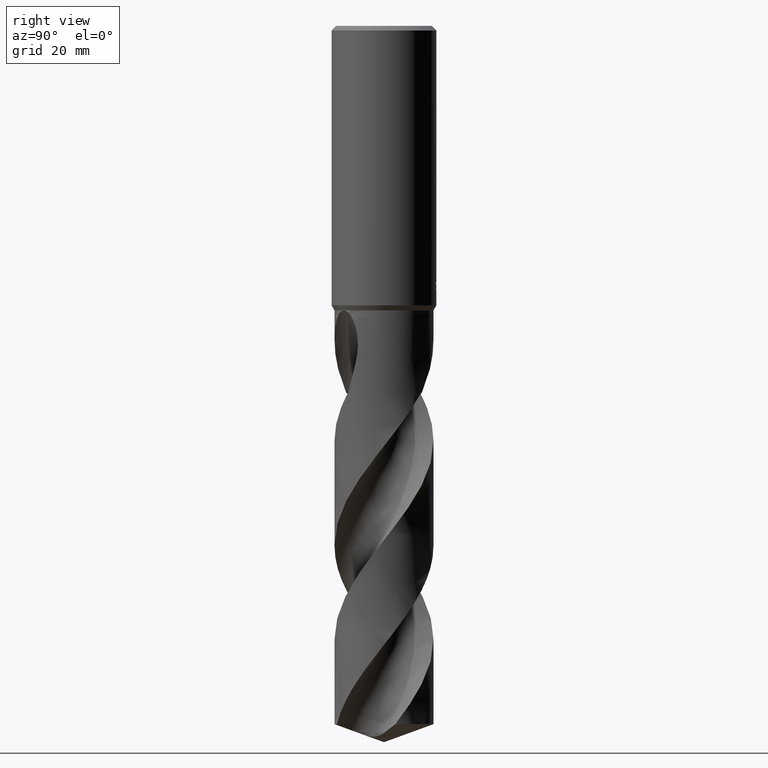
[diagram: clean part render]
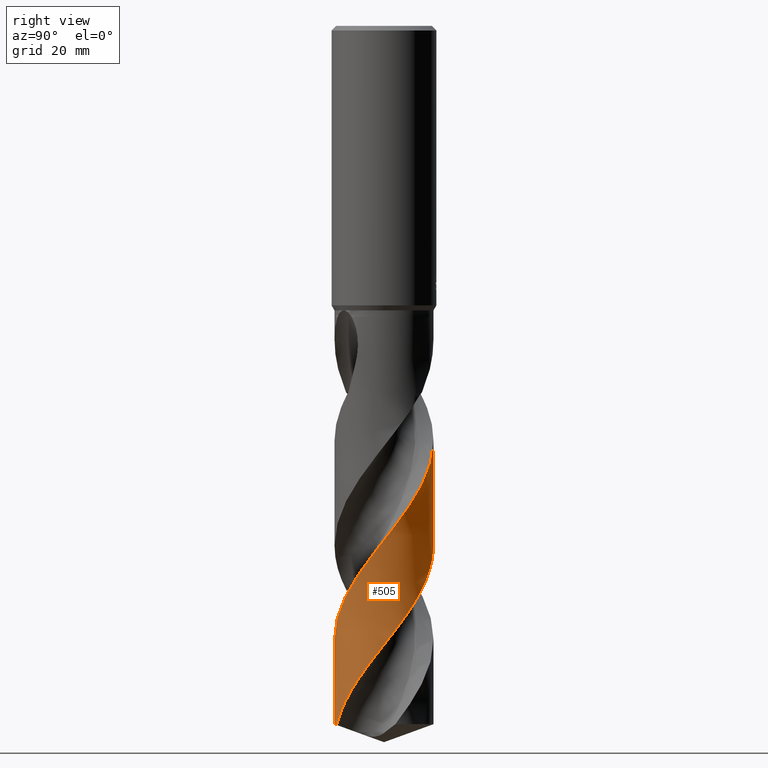
[diagram: same view with one face highlighted and labeled with its STEP entity id]
A machine part, right view. The second image highlights one B-rep face of the part: STEP entity #505.
In plain terms, the highlighted conical surface has half-angle 0 deg.
Its self-contained STEP definition (entity closure, byte-faithful):
#371=EDGE_CURVE('',#585,#535,#889,.T.);
#379=EDGE_CURVE('',#519,#491,#898,.T.);
#385=VERTEX_POINT('',#904);
#491=VERTEX_POINT('',#1021);
#505=ADVANCED_FACE('',(#1036),#1037,.T.);
#519=VERTEX_POINT('',#1053);
#535=VERTEX_POINT('',#1071);
#563=EDGE_CURVE('',#385,#535,#1102,.T.);
#565=EDGE_CURVE('',#585,#519,#1104,.T.);
#585=VERTEX_POINT('',#1124);
#707=EDGE_CURVE('',#385,#491,#1257,.T.);
#889=B_SPLINE_CURVE_WITH_KNOTS('',3,(#2892,#2893,#2894,#2895,#2896,#2897,#2898,#2899,#2900,#2901,#2902,#2903,#2904,#2905,#2906,#2907,#2908,#2909,#2910,#2911,#2912,#2913,#2914,#2915,#2916,#2917,#2918,#2919,#2920,#2921,#2922,#2923,#2924,#2925,#2926,#2927,#2928,#2929,#2930,#2931,#2932,#2933,#2934,#2935,#2936,#2937,#2938,#2939,#2940,#2941,#2942,#2943,#2944,#2945,#2946,#2947,#2948,#2949,#2950,#2951,#2952,#2953,#2954,#2955,#2956,#2957,#2958,#2959,#2960,#2961,#2962,#2963,#2964,#2965,#2966,#2967,#2968,#2969),.UNSPECIFIED.,.F.,.F.,(4,2,2,2,2,2,2,2,2,2,2,2,2,2,2,2,2,2,2,2,2,2,2,2,2,2,2,2,2,2,2,2,2,2,2,2,2,2,4),(0.0,0.522563173765693,1.06852787144432,3.34920803569918,4.92623591202756,6.26376894527645,9.73321756467634,11.0126163139356,14.2925667231069,15.854647884131,18.8948826092623,21.6782707077687,23.2905712357289,26.597154616735,29.2462148435049,30.2440652652966,33.3355472262883,36.1004614177827,38.9164952089854,39.4585055175222,42.6761939699768,45.7998130510591,48.5512001440996,48.8223862354826,53.3090894083769,53.8513011431229,58.2104804619845,58.3876437263313,62.6964514163737,63.8166452772653,65.8150686431684,67.6747637446207,68.7418822960407,69.6574210277493,70.4989231501578,70.8960297154981,71.4592013883667,72.7020427435539,73.5316494986147),.UNSPECIFIED.);
#898=LINE('',#2981,#2982);
#904=CARTESIAN_POINT('',(-2.53911718954206E-014,8.4999303640152,-71.226345266382));
#1021=CARTESIAN_POINT('',(1.47295884342451E-014,-8.49997919241052,-105.3604468587));
#1036=FACE_OUTER_BOUND('',#4318,.T.);
#1037=CONICAL_SURFACE('',#4319,8.49995,1.43048719815093E-006);
#1053=CARTESIAN_POINT('',(1.03746998619684E-015,-8.5,-119.906253008737));
#1071=CARTESIAN_POINT('',(1.45768554153083E-014,8.49995609925248,-89.216885372482));
#1102=LINE('',#4409,#4410);
#1104=CIRCLE('',#4413,8.5);
#1124=CARTESIAN_POINT('',(2.64912910063122,-8.07664008162979,-119.906253008737));
#1257=B_SPLINE_CURVE_WITH_KNOTS('',3,(#5201,#5202,#5203,#5204,#5205,#5206,#5207,#5208,#5209,#5210,#5211,#5212,#5213,#5214,#5215,#5216,#5217,#5218,#5219,#5220,#5221,#5222,#5223,#5224,#5225,#5226,#5227,#5228,#5229,#5230,#5231,#5232,#5233,#5234,#5235,#5236,#5237,#5238,#5239,#5240,#5241,#5242,#5243,#5244,#5245,#5246,#5247,#5248,#5249,#5250,#5251,#5252,#5253,#5254,#5255,#5256,#5257,#5258,#5259,#5260,#5261,#5262,#5263,#5264,#5265,#5266,#5267,#5268,#5269,#5270,#5271,#5272,#5273,#5274,#5275,#5276,#5277,#5278,#5279,#5280,#5281,#5282,#5283,#5284,#5285,#5286,#5287,#5288,#5289,#5290,#5291,#5292,#5293,#5294),.UNSPECIFIED.,.F.,.F.,(4,2,2,2,2,2,2,2,2,2,2,2,2,2,2,2,2,2,2,2,2,2,2,2,2,2,2,2,2,2,2,2,2,2,2,2,2,2,2,2,2,2,2,2,2,2,4),(0.0,0.253812338952546,0.303065578360708,1.36567609327622,1.71326172082814,1.92978585357073,2.12916142180026,2.82857112846694,3.25207999522695,3.4194376655401,3.53627290174181,3.63733756199075,4.26628031347629,5.2413929826984,6.45492809797782,8.06006967037196,10.1774083643199,13.0142745039423,15.1197337604657,17.2291055768132,19.3406794450398,21.4411121107762,22.5002519598631,24.5896516441418,26.699895634037,28.8068514497284,30.9105827809901,31.9688849657346,33.0134482178288,37.1711254169557,37.2323007257813,40.7622776718615,42.8632847307241,44.9679491531301,46.0251444994689,47.0655908240784,49.1630782395083,50.2217386611367,52.3147155685225,54.4216976726653,56.4229663295075,59.9033612358468,61.2157169828315,63.526609897052,67.0035445281928,68.7426594625338,70.4838149129698),.UNSPECIFIED.);
#2892=CARTESIAN_POINT('',(2.64912910063121,-8.0766400816298,-119.906253008737));
#2893=CARTESIAN_POINT('',(2.75098393759203,-8.04323159996719,-119.768954687779));
#2894=CARTESIAN_POINT('',(2.85219617614923,-8.00789985668937,-119.631692707535));
#2895=CARTESIAN_POINT('',(3.05772794157049,-7.93176072954062,-119.350942803885));
#2896=CARTESIAN_POINT('',(3.16198306629713,-7.89077964541316,-119.207375955885));
#2897=CARTESIAN_POINT('',(3.69763170476251,-7.66789489262512,-118.464714375239));
#2898=CARTESIAN_POINT('',(4.11479116041626,-7.45243636111605,-117.868787992535));
#2899=CARTESIAN_POINT('',(4.78767827295297,-7.03089083955277,-116.857214006794));
#2900=CARTESIAN_POINT('',(5.05228281222242,-6.84318206998036,-116.444428298932));
#2901=CARTESIAN_POINT('',(5.51970598669576,-6.4697851248192,-115.678889054505));
#2902=CARTESIAN_POINT('',(5.72543562735683,-6.28843590937243,-115.326338353962));
#2903=CARTESIAN_POINT('',(6.43218045082562,-5.60201361475981,-114.063925146229));
#2904=CARTESIAN_POINT('',(6.8781594144636,-5.04449951513085,-113.163503107259));
#2905=CARTESIAN_POINT('',(7.38658965708235,-4.21389804947806,-111.917548190763));
#2906=CARTESIAN_POINT('',(7.51297846529282,-3.98417708818616,-111.580889678707));
#2907=CARTESIAN_POINT('',(7.92498888747934,-3.14578136039116,-110.384777385938));
#2908=CARTESIAN_POINT('',(8.14888139300285,-2.50952355768237,-109.533308339802));
#2909=CARTESIAN_POINT('',(8.36532517773831,-1.54065700596246,-108.264220801238));
#2910=CARTESIAN_POINT('',(8.41734508244911,-1.22483393199911,-107.853307497329));
#2911=CARTESIAN_POINT('',(8.51784822300015,-0.288281446076393,-106.647171829965));
#2912=CARTESIAN_POINT('',(8.51614861730795,0.336093254698121,-105.857670777251));
#2913=CARTESIAN_POINT('',(8.38205885374967,1.52183932315258,-104.333247502689));
#2914=CARTESIAN_POINT('',(8.26113900637088,2.08060004996286,-103.601702385069));
#2915=CARTESIAN_POINT('',(7.98295873306897,2.93789625700232,-102.451275437434));
#2916=CARTESIAN_POINT('',(7.86266566880863,3.24612959231397,-102.030387632079));
#2917=CARTESIAN_POINT('',(7.44181096386992,4.16277689570681,-100.743158849098));
#2918=CARTESIAN_POINT('',(7.08636703099604,4.74264351336634,-99.8746091991749));
#2919=CARTESIAN_POINT('',(6.32854882210871,5.70035356788034,-98.3161379449366));
#2920=CARTESIAN_POINT('',(5.95186928786726,6.0924646289315,-97.6272565589455));
#2921=CARTESIAN_POINT('',(5.38638556263966,6.57859542487709,-96.671401751321));
#2922=CARTESIAN_POINT('',(5.22694933434147,6.70598541612625,-96.4093267663912));
#2923=CARTESIAN_POINT('',(4.55382452714012,7.20509598853579,-95.336457226253));
#2924=CARTESIAN_POINT('',(4.00420913159156,7.52447685403036,-94.5330004675083));
#2925=CARTESIAN_POINT('',(2.90478385745131,8.00831940255177,-92.9980825475109));
#2926=CARTESIAN_POINT('',(2.36410668880177,8.18428762526545,-92.2705388292622));
#2927=CARTESIAN_POINT('',(1.2445571093004,8.4282045541957,-90.8081457592181));
#2928=CARTESIAN_POINT('',(0.669408795424937,8.49313633870847,-90.0754871151347));
#2929=CARTESIAN_POINT('',(-0.0178515618868574,8.50066121093801,-89.1940387035066));
#2930=CARTESIAN_POINT('',(-0.128700775799963,8.4997068816113,-89.0516388482566));
#2931=CARTESIAN_POINT('',(-0.898676471842592,8.47798313325479,-88.0640430956754));
#2932=CARTESIAN_POINT('',(-1.55384072915769,8.38279568796939,-87.2274458414239));
#2933=CARTESIAN_POINT('',(-2.81181112344267,8.04700033415922,-85.5648636900374));
#2934=CARTESIAN_POINT('',(-3.41065227365796,7.81206401554192,-84.7428333255196));
#2935=CARTESIAN_POINT('',(-4.47722902075621,7.2472746311567,-83.2028829207403));
#2936=CARTESIAN_POINT('',(-4.94826359237976,6.93404926416158,-82.4865091750369));
#2937=CARTESIAN_POINT('',(-5.42707272093589,6.5420971035327,-81.6926579946691));
#2938=CARTESIAN_POINT('',(-5.46962941551944,6.50655838804929,-81.621445934763));
#2939=CARTESIAN_POINT('',(-6.21073343886888,5.87525687992692,-80.372195741408));
#2940=CARTESIAN_POINT('',(-6.80814242699897,5.17106905421937,-79.2166099893045));
#2941=CARTESIAN_POINT('',(-7.33866308247959,4.29013936672446,-77.8972244836123));
#2942=CARTESIAN_POINT('',(-7.39397030060091,4.19410487545515,-77.7548330744827));
#2943=CARTESIAN_POINT('',(-7.87790944222036,3.31435238520003,-76.4673408092359));
#2944=CARTESIAN_POINT('',(-8.1821057069836,2.46950134732456,-75.3433355852327));
#2945=CARTESIAN_POINT('',(-8.35613893355806,1.55728766377542,-74.1525478446468));
#2946=CARTESIAN_POINT('',(-8.3627021470603,1.52164849092407,-74.1060510520136));
#2947=CARTESIAN_POINT('',(-8.52322818577031,0.617533131150302,-72.9284503470329));
#2948=CARTESIAN_POINT('',(-8.54133839471708,-0.269608539391488,-71.8128314635997));
#2949=CARTESIAN_POINT('',(-8.39175418545861,-1.37108093923388,-70.3900889233398));
#2950=CARTESIAN_POINT('',(-8.35172332767457,-1.59688511935425,-70.095950786162));
#2951=CARTESIAN_POINT('',(-8.21503200842603,-2.22018496449671,-69.278401390267));
#2952=CARTESIAN_POINT('',(-8.09918032957793,-2.61062894863148,-68.755988689088));
#2953=CARTESIAN_POINT('',(-7.82479752072521,-3.34106767705951,-67.7618509461966));
#2954=CARTESIAN_POINT('',(-7.67218446827076,-3.67783137410969,-67.3042535842625));
#2955=CARTESIAN_POINT('',(-7.39438009537402,-4.19737866926478,-66.5622053840109));
#2956=CARTESIAN_POINT('',(-7.28582012372642,-4.38312904805801,-66.2896863962693));
#2957=CARTESIAN_POINT('',(-7.07112920884746,-4.72037020772649,-65.7569434688735));
#2958=CARTESIAN_POINT('',(-6.97151054571912,-4.86542578050415,-65.5108887177227));
#2959=CARTESIAN_POINT('',(-6.7908878187767,-5.11411564484639,-65.08424026607));
#2960=CARTESIAN_POINT('',(-6.64489708422403,-5.30201583184537,-64.7491526388753));
#2961=CARTESIAN_POINT('',(-6.52156787297093,-5.45175872014934,-64.4913063763406));
#2962=CARTESIAN_POINT('',(-6.4807212287408,-5.5002809966868,-64.4096743157146));
#2963=CARTESIAN_POINT('',(-6.37854935220333,-5.61882349879718,-64.2145223456821));
#2964=CARTESIAN_POINT('',(-6.31595274357627,-5.68917560378096,-64.1022290948111));
#2965=CARTESIAN_POINT('',(-6.1059783426664,-5.91702013143584,-63.7482515750393));
#2966=CARTESIAN_POINT('',(-5.94862593987465,-6.07594955329417,-63.5159486166895));
#2967=CARTESIAN_POINT('',(-5.66259310841172,-6.34097978878107,-63.1428341261082));
#2968=CARTESIAN_POINT('',(-5.54238623063757,-6.44649836742684,-62.9980802153434));
#2969=CARTESIAN_POINT('',(-5.41628966392336,-6.55075712748483,-62.857));
#2981=CARTESIAN_POINT('',(1.03746386316507E-015,-8.49995,-84.9531265043686));
#2982=VECTOR('',#5691,1.0);
#4318=EDGE_LOOP('',(#5859,#5860,#5861,#5862,#5863));
#4319=AXIS2_PLACEMENT_3D('',#5864,#5865,#5866);
#4409=CARTESIAN_POINT('',(-1.04435469226943E-015,8.49995,-84.9531265043686));
#4410=VECTOR('',#5955,1.0);
#4413=AXIS2_PLACEMENT_3D('',#5956,#5957,#5958);
#5201=CARTESIAN_POINT('',(-5.90809969899241,6.11088951083082,-62.857));
#5202=CARTESIAN_POINT('',(-5.87221941993922,6.1455792390864,-62.9253160615262));
#5203=CARTESIAN_POINT('',(-5.83596911616855,6.18001599996186,-62.9936082539743));
#5204=CARTESIAN_POINT('',(-5.79217013533639,6.22089044159121,-63.0750555364318));
#5205=CARTESIAN_POINT('',(-5.78503677087336,6.2275246186053,-63.0882874427338));
#5206=CARTESIAN_POINT('',(-5.62363951871176,6.37711014486615,-63.3868998378269));
#5207=CARTESIAN_POINT('',(-5.46527350917205,6.51362064006598,-63.6634205157183));
#5208=CARTESIAN_POINT('',(-5.23819320647497,6.69440748775832,-64.0351454179643));
#5209=CARTESIAN_POINT('',(-5.18148608425667,6.73840222255741,-64.1261825126412));
#5210=CARTESIAN_POINT('',(-5.08793784152229,6.80907929834081,-64.2738620935321));
#5211=CARTESIAN_POINT('',(-5.05175264421604,6.83597005997861,-64.3303985998685));
#5212=CARTESIAN_POINT('',(-4.98165780024452,6.88719600820162,-64.4389484272258));
#5213=CARTESIAN_POINT('',(-4.94784040815908,6.91153154014446,-64.49089500235));
#5214=CARTESIAN_POINT('',(-4.79437972603628,7.02025642593573,-64.7250587362615));
#5215=CARTESIAN_POINT('',(-4.6736143812172,7.10128889446571,-64.9056273429166));
#5216=CARTESIAN_POINT('',(-4.47099728309981,7.22959433896977,-65.2069165619978));
#5217=CARTESIAN_POINT('',(-4.39404338193618,7.27661596628485,-65.320742458954));
#5218=CARTESIAN_POINT('',(-4.28597802215397,7.34032229003719,-65.4798704820984));
#5219=CARTESIAN_POINT('',(-4.25529335255793,7.35815279168282,-65.5249744067454));
#5220=CARTESIAN_POINT('',(-4.20306136377206,7.38806923005985,-65.6016242692165));
#5221=CARTESIAN_POINT('',(-4.18155255818846,7.40026409687058,-65.6331518811483));
#5222=CARTESIAN_POINT('',(-4.14137312362896,7.42281395008058,-65.6919822198973));
#5223=CARTESIAN_POINT('',(-4.12269630077209,7.43320347987272,-65.7193017582859));
#5224=CARTESIAN_POINT('',(-3.98754939567194,7.50771707935226,-65.916762575083));
#5225=CARTESIAN_POINT('',(-3.86979130998103,7.56908061802205,-66.0875942588663));
#5226=CARTESIAN_POINT('',(-3.56638345071463,7.71828067030024,-66.5227065277712));
#5227=CARTESIAN_POINT('',(-3.37838870452789,7.80241696876145,-66.787200254416));
#5228=CARTESIAN_POINT('',(-2.94937052056767,7.97595007466696,-67.3800235144525));
#5229=CARTESIAN_POINT('',(-2.70750708223362,8.06127491680351,-67.7063471721452));
#5230=CARTESIAN_POINT('',(-2.13629090038215,8.23410648908387,-68.4671472297713));
#5231=CARTESIAN_POINT('',(-1.8056994583958,8.31283727905234,-68.9007155051148));
#5232=CARTESIAN_POINT('',(-1.03094842958208,8.44903109716759,-69.9062764871532));
#5233=CARTESIAN_POINT('',(-0.584963776621055,8.49155877630995,-70.4778403848533));
#5234=CARTESIAN_POINT('',(0.461183202719636,8.50853024226106,-71.8165191225964));
#5235=CARTESIAN_POINT('',(1.05979945749143,8.45489357746644,-72.5794888982617));
#5236=CARTESIAN_POINT('',(2.08463076807565,8.25234796754098,-73.9141466339922));
#5237=CARTESIAN_POINT('',(2.51355943327428,8.13194897761021,-74.4820491581643));
#5238=CARTESIAN_POINT('',(3.34902408510136,7.82504798371198,-75.6208822863472));
#5239=CARTESIAN_POINT('',(3.75461511632098,7.63875516582348,-76.1899781152287));
#5240=CARTESIAN_POINT('',(4.53356840791424,7.20381257431912,-77.329843283838));
#5241=CARTESIAN_POINT('',(4.90538274987309,6.95594651697295,-77.8984457949356));
#5242=CARTESIAN_POINT('',(5.60469371445235,6.40572506187058,-79.0363531653965));
#5243=CARTESIAN_POINT('',(5.93147158950654,6.10440008408319,-79.6033780312202));
#5244=CARTESIAN_POINT('',(6.38543507418686,5.61474479785697,-80.4568358890239));
#5245=CARTESIAN_POINT('',(6.53109464867219,5.44462905244541,-80.7427469130589));
#5246=CARTESIAN_POINT('',(6.94369965841381,4.92231787354949,-81.5930348006674));
#5247=CARTESIAN_POINT('',(7.18995901128097,4.55503636622036,-82.1564878854524));
#5248=CARTESIAN_POINT('',(7.62520871518718,3.78206191716352,-83.2912454723709));
#5249=CARTESIAN_POINT('',(7.81310607204326,3.3769055960672,-83.8605735946876));
#5250=CARTESIAN_POINT('',(8.12341978070049,2.54117630252012,-84.9995549786111));
#5251=CARTESIAN_POINT('',(8.24534247012864,2.1122528432724,-85.5672147677674));
#5252=CARTESIAN_POINT('',(8.42072756662527,1.24018284957741,-86.70498092886));
#5253=CARTESIAN_POINT('',(8.47407166015729,0.798153009875976,-87.2728426756752));
#5254=CARTESIAN_POINT('',(8.50189813696101,0.130365486743791,-88.1270024040807));
#5255=CARTESIAN_POINT('',(8.50238618241111,-0.0934492656800616,-88.4126935683108));
#5256=CARTESIAN_POINT('',(8.48580232482688,-0.537758966469733,-88.9806341667838));
#5257=CARTESIAN_POINT('',(8.46896943966947,-0.757984284316181,-89.2625178285412));
#5258=CARTESIAN_POINT('',(8.34257217379008,-1.85007526457722,-90.6681491707932));
#5259=CARTESIAN_POINT('',(8.10676786094124,-2.7023144067441,-91.7854920354552));
#5260=CARTESIAN_POINT('',(7.73909930468749,-3.51508935064758,-92.9251234767499));
#5261=CARTESIAN_POINT('',(7.73374089673862,-3.5268631034446,-92.9416493252441));
#5262=CARTESIAN_POINT('',(7.41760562595026,-4.21730577623417,-93.9118610133254));
#5263=CARTESIAN_POINT('',(7.01869824495015,-4.85228934357238,-94.8638031576607));
#5264=CARTESIAN_POINT('',(6.25828471003721,-5.76894932942163,-96.3853569995988));
#5265=CARTESIAN_POINT('',(5.94829194375596,-6.08805827131489,-96.9518457976567));
#5266=CARTESIAN_POINT('',(5.28095276295788,-6.67524405886039,-98.0888526713991));
#5267=CARTESIAN_POINT('',(4.92433126968702,-6.94251914596974,-98.6571759555773));
#5268=CARTESIAN_POINT('',(4.35941939265152,-7.30033953185313,-99.5116847488283));
#5269=CARTESIAN_POINT('',(4.16586733250295,-7.41249450655679,-99.7972077914998));
#5270=CARTESIAN_POINT('',(3.77345324388769,-7.6196468191681,-100.364019803102));
#5271=CARTESIAN_POINT('',(3.57496876670744,-7.71475946248488,-100.644987009249));
#5272=CARTESIAN_POINT('',(2.96604329617346,-7.97801811872066,-101.493312540333));
#5273=CARTESIAN_POINT('',(2.54580408460084,-8.12189579084689,-102.060002550287));
#5274=CARTESIAN_POINT('',(1.89938652874724,-8.2880660030482,-102.913168726843));
#5275=CARTESIAN_POINT('',(1.68040036721888,-8.33522696857843,-103.199164327331));
#5276=CARTESIAN_POINT('',(1.02356177939262,-8.44973311277735,-104.050899991783));
#5277=CARTESIAN_POINT('',(0.582264182054867,-8.4915451294454,-104.615557401454));
#5278=CARTESIAN_POINT('',(-0.305431079528603,-8.50615883491753,-105.751208688693));
#5279=CARTESIAN_POINT('',(-0.750810614379122,-8.4784794098823,-106.320130591387));
#5280=CARTESIAN_POINT('',(-1.61128444650636,-8.35659526938531,-107.430510259664));
#5281=CARTESIAN_POINT('',(-2.02529184518391,-8.26601118347878,-107.970030390543));
#5282=CARTESIAN_POINT('',(-3.13588136923488,-7.93457533517446,-109.452227475848));
#5283=CARTESIAN_POINT('',(-3.81101804170272,-7.63336227445126,-110.389916905631));
#5284=CARTESIAN_POINT('',(-4.67584032512254,-7.10376127525734,-111.685341955285));
#5285=CARTESIAN_POINT('',(-4.90531013364723,-6.94728317295271,-112.039819696418));
#5286=CARTESIAN_POINT('',(-5.51639992335243,-6.48520806319057,-113.019604702606));
#5287=CARTESIAN_POINT('',(-5.88014246848039,-6.15733986079202,-113.643655648051));
#5288=CARTESIAN_POINT('',(-6.71573497211977,-5.26212619491079,-115.208246605066));
#5289=CARTESIAN_POINT('',(-7.14555925582574,-4.66166319994017,-116.144133865506));
#5290=CARTESIAN_POINT('',(-7.66623057661623,-3.68971615362029,-117.554947969865));
#5291=CARTESIAN_POINT('',(-7.818697361074,-3.35459563693442,-118.024733890778));
#5292=CARTESIAN_POINT('',(-8.07948881259736,-2.66599729991674,-118.965564055));
#5293=CARTESIAN_POINT('',(-8.18743642854259,-2.31335521502902,-119.435593850987));
#5294=CARTESIAN_POINT('',(-8.27216693933794,-1.95480283602327,-119.906253008737));
#5691=DIRECTION('',(-1.7517837119166E-022,1.43048719815044E-006,0.999999999998977));
#5859=ORIENTED_EDGE('',*,*,#563,.F.);
#5860=ORIENTED_EDGE('',*,*,#707,.T.);
#5861=ORIENTED_EDGE('',*,*,#379,.F.);
#5862=ORIENTED_EDGE('',*,*,#565,.F.);
#5863=ORIENTED_EDGE('',*,*,#371,.T.);
#5864=CARTESIAN_POINT('',(0.0,0.0,-84.9531265043686));
#5865=DIRECTION('',(0.0,-0.0,-1.0));
#5866=DIRECTION('',(0.0,1.0,0.0));
#5955=DIRECTION('',(-1.7517837119166E-022,1.43048719815044E-006,-0.999999999998977));
#5956=CARTESIAN_POINT('',(0.0,0.0,-119.906253008737));
#5957=DIRECTION('',(0.0,0.0,-1.0));
#5958=DIRECTION('',(0.0,1.0,0.0));